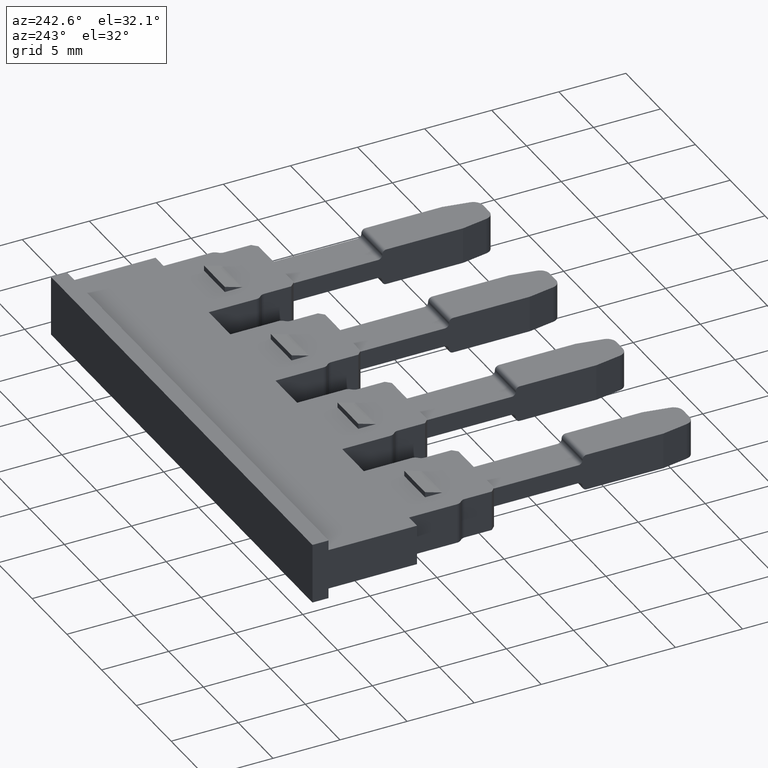
[diagram: clean part render]
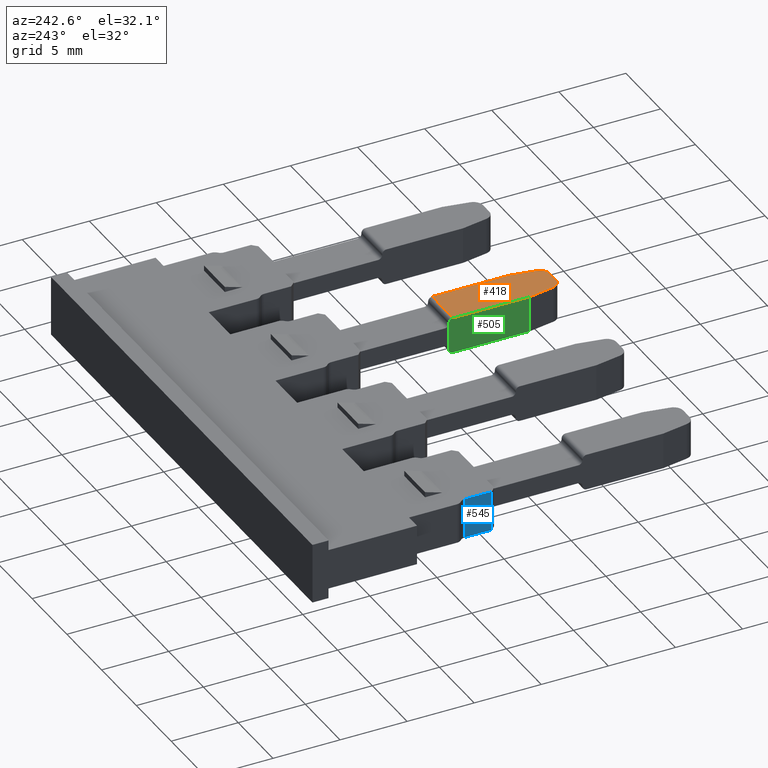
[diagram: same view with three faces highlighted in distinct colors, each labeled with its STEP entity id]
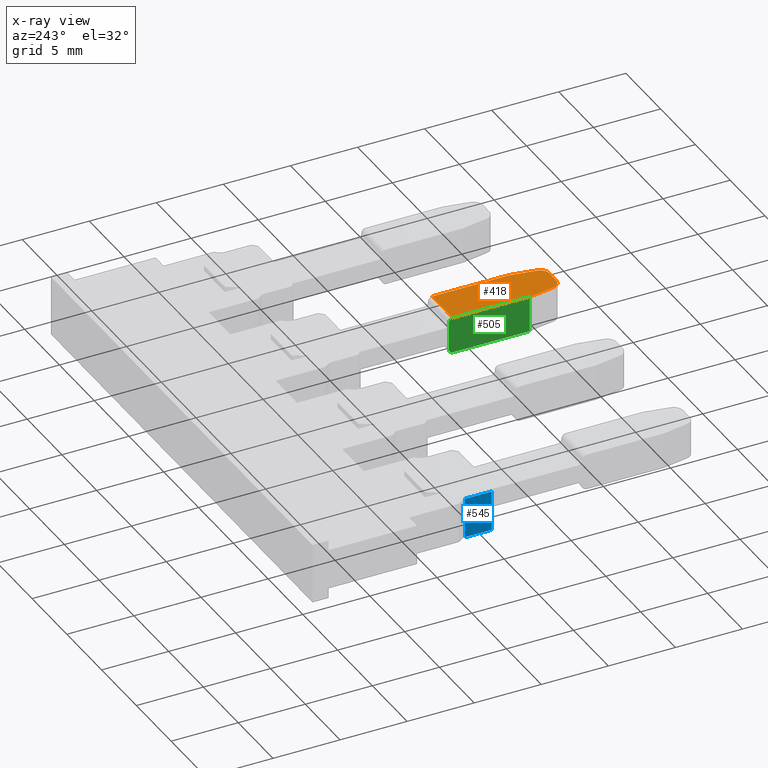
[diagram: x-ray of the same camera — body ghosted, the three highlighted faces saturated]
A machine part, auxiliary view with three faces highlighted in distinct colors.
The next image is the same camera in x-ray (body ghosted, the three faces saturated) — at least one of them is partly hidden behind the body in this view.
Their STEP definitions:

[orange] entity #418 — the highlighted planar face has unit normal (-0, 0, 1).
#233 = EDGE_CURVE ( 'NONE', #5245, #5262, #3550, .T. ) ;
#238 = EDGE_CURVE ( 'NONE', #5188, #5190, #3603, .T. ) ;
#250 = EDGE_CURVE ( 'NONE', #5188, #5262, #3646, .T. ) ;
#251 = EDGE_CURVE ( 'NONE', #5190, #5198, #3677, .T. ) ;
#252 = EDGE_CURVE ( 'NONE', #5198, #5228, #3658, .T. ) ;
#280 = EDGE_CURVE ( 'NONE', #5201, #5250, #3740, .T. ) ;
#297 = EDGE_CURVE ( 'NONE', #5245, #5250, #5401, .T. ) ;
#302 = EDGE_CURVE ( 'NONE', #5228, #5201, #3270, .T. ) ;
#418 = ADVANCED_FACE ( 'NONE', ( #4150 ), #4182, .T. ) ;
#1028 = ORIENTED_EDGE ( 'NONE', *, *, #297, .F. ) ;
#1030 = ORIENTED_EDGE ( 'NONE', *, *, #238, .T. ) ;
#1031 = ORIENTED_EDGE ( 'NONE', *, *, #233, .T. ) ;
#1041 = ORIENTED_EDGE ( 'NONE', *, *, #252, .T. ) ;
#1055 = ORIENTED_EDGE ( 'NONE', *, *, #302, .T. ) ;
#1060 = ORIENTED_EDGE ( 'NONE', *, *, #250, .F. ) ;
#1062 = ORIENTED_EDGE ( 'NONE', *, *, #251, .T. ) ;
#1084 = ORIENTED_EDGE ( 'NONE', *, *, #280, .T. ) ;
#2218 = CARTESIAN_POINT ( 'NONE',  ( 1145.094445258720500, 652.3527367076559400, 2.847804784789210100 ) ) ;
#2235 = CARTESIAN_POINT ( 'NONE',  ( 1142.433259543838400, 644.7067378249282700, 2.847804784774850400 ) ) ;
#2264 = CARTESIAN_POINT ( 'NONE',  ( 1142.094434011690700, 652.3527719075091200, 2.847804784774824700 ) ) ;
#2267 = CARTESIAN_POINT ( 'NONE',  ( 1142.094434011690700, 646.6283161340937800, 2.847804784774840700 ) ) ;
#2276 = CARTESIAN_POINT ( 'NONE',  ( 1143.122625005873500, 644.1282913512167200, 2.847804784774896200 ) ) ;
#2284 = CARTESIAN_POINT ( 'NONE',  ( 1144.066249097331400, 644.1282913512167200, 2.847804784774927700 ) ) ;
#2308 = CARTESIAN_POINT ( 'NONE',  ( 1144.755614559366700, 644.7067378249282700, 2.847804784774987200 ) ) ;
#2344 = CARTESIAN_POINT ( 'NONE',  ( 1145.094440091514300, 646.6283161340935500, 2.847804784775002800 ) ) ;
#3185 = VECTOR ( 'NONE', #3641, 1000.000000000000000 ) ;
#3190 = VECTOR ( 'NONE', #3602, 1000.000000000000100 ) ;
#3197 = VECTOR ( 'NONE', #3769, 1000.000000000000000 ) ;
#3203 = VECTOR ( 'NONE', #3594, 1000.000000000000100 ) ;
#3228 = VECTOR ( 'NONE', #3650, 1000.000000000000000 ) ;
#3237 = VECTOR ( 'NONE', #3640, 1000.000000000000100 ) ;
#3254 = AXIS2_PLACEMENT_3D ( 'NONE', #3846, #3827, #3844 ) ;
#3270 = CIRCLE ( 'NONE', #3254, 0.6999999999999229100 ) ;
#3422 = AXIS2_PLACEMENT_3D ( 'NONE', #4165, #4178, #4148 ) ;
#3550 = LINE ( 'NONE', #3600, #3190 ) ;
#3594 = DIRECTION ( 'NONE',  ( -0.9999999999311652800, 1.173325889926041300E-005, -5.363175877137947600E-014 ) ) ;
#3600 = CARTESIAN_POINT ( 'NONE',  ( 1144.755614559366700, 644.7067378249282700, 2.847804784774984100 ) ) ;
#3602 = DIRECTION ( 'NONE',  ( 0.1736478946976743900, 0.9848078029072806500, 9.334970462687131000E-015 ) ) ;
#3603 = LINE ( 'NONE', #3613, #3203 ) ;
#3613 = CARTESIAN_POINT ( 'NONE',  ( 1145.094440091514300, 652.3527367076559400, 2.847804784775002300 ) ) ;
#3640 = DIRECTION ( 'NONE',  ( 7.162729585980651700E-007, -0.9999999999997434300, -2.254383868701461200E-012 ) ) ;
#3641 = DIRECTION ( 'NONE',  ( -0.0000000000000000000, -1.000000000000000000, -0.0000000000000000000 ) ) ;
#3642 = CARTESIAN_POINT ( 'NONE',  ( 1142.094434011690700, 646.6283161340936700, 2.847804784774840700 ) ) ;
#3646 = LINE ( 'NONE', #3655, #3237 ) ;
#3650 = DIRECTION ( 'NONE',  ( 0.1736478946976646700, -0.9848078029072824300, -0.0000000000000000000 ) ) ;
#3655 = CARTESIAN_POINT ( 'NONE',  ( 1145.094445258716900, 652.3527416319764100, 2.847804784787907600 ) ) ;
#3658 = LINE ( 'NONE', #3642, #3228 ) ;
#3662 = CARTESIAN_POINT ( 'NONE',  ( 1142.094434011690700, 652.6527719075244200, 2.847804784774840700 ) ) ;
#3677 = LINE ( 'NONE', #3662, #3185 ) ;
#3740 = LINE ( 'NONE', #3766, #3197 ) ;
#3766 = CARTESIAN_POINT ( 'NONE',  ( 1135.207395039572200, 644.1282913512167200, 2.847804784774895700 ) ) ;
#3769 = DIRECTION ( 'NONE',  ( 1.000000000000000000, -1.720418656508634100E-014, -0.0000000000000000000 ) ) ;
#3791 = CARTESIAN_POINT ( 'NONE',  ( 1144.755614559366700, 644.7067378249282700, 2.847804784774987200 ) ) ;
#3806 = CARTESIAN_POINT ( 'NONE',  ( 1144.727327763530400, 644.5463151644213400, 2.847804784774983200 ) ) ;
#3811 = CARTESIAN_POINT ( 'NONE',  ( 1144.640987157445100, 644.3967687734993900, 2.847804784774977900 ) ) ;
#3812 = CARTESIAN_POINT ( 'NONE',  ( 1144.229146527706700, 644.1282913512168300, 2.847804784774955700 ) ) ;
#3814 = CARTESIAN_POINT ( 'NONE',  ( 1144.391413844856700, 644.1873518378539500, 2.847804784774964600 ) ) ;
#3816 = CARTESIAN_POINT ( 'NONE',  ( 1144.066249097331400, 644.1282913512167200, 2.847804784774927700 ) ) ;
#3827 = DIRECTION ( 'NONE',  ( -5.364441115151316900E-014, -2.347622273454535600E-024, 1.000000000000000000 ) ) ;
#3844 = DIRECTION ( 'NONE',  ( 1.000000000000000000, 0.0000000000000000000, 5.390033657499958300E-014 ) ) ;
#3846 = CARTESIAN_POINT ( 'NONE',  ( 1143.122625005873500, 644.8282913512166500, 2.847804784774896200 ) ) ;
#4148 = DIRECTION ( 'NONE',  ( 1.000000000000000000, 0.0000000000000000000, 5.364441115334514400E-014 ) ) ;
#4150 = FACE_OUTER_BOUND ( 'NONE', #5042, .T. ) ;
#4165 = CARTESIAN_POINT ( 'NONE',  ( 1146.094434382171400, 641.5303140484550100, 2.847804784775056100 ) ) ;
#4178 = DIRECTION ( 'NONE',  ( -5.364441115334514400E-014, 1.058364141383339600E-023, 1.000000000000000000 ) ) ;
#4182 = PLANE ( 'NONE',  #3422 ) ;
#5042 = EDGE_LOOP ( 'NONE', ( #1060, #1030, #1062, #1041, #1055, #1084, #1028, #1031 ) ) ;
#5188 = VERTEX_POINT ( 'NONE', #2218 ) ;
#5190 = VERTEX_POINT ( 'NONE', #2264 ) ;
#5198 = VERTEX_POINT ( 'NONE', #2267 ) ;
#5201 = VERTEX_POINT ( 'NONE', #2276 ) ;
#5228 = VERTEX_POINT ( 'NONE', #2235 ) ;
#5245 = VERTEX_POINT ( 'NONE', #2308 ) ;
#5250 = VERTEX_POINT ( 'NONE', #2284 ) ;
#5262 = VERTEX_POINT ( 'NONE', #2344 ) ;
#5401 = B_SPLINE_CURVE_WITH_KNOTS ( 'NONE', 3,
 ( #3791, #3806, #3811, #3814, #3812, #3816 ),
 .UNSPECIFIED., .F., .F.,
 ( 4, 2, 4 ),
 ( 0.0000000000000000000, 0.5000000000000000000, 1.000000000000000000 ),
 .UNSPECIFIED. ) ;

[blue] entity #545 — the highlighted planar face has unit normal (1, -0, 0).
#1 = EDGE_CURVE ( 'NONE', #5020, #5027, #1032, .T. ) ;
#111 = EDGE_CURVE ( 'NONE', #5118, #5058, #1407, .T. ) ;
#443 = EDGE_CURVE ( 'NONE', #5027, #5058, #4283, .T. ) ;
#449 = EDGE_CURVE ( 'NONE', #5118, #5020, #4321, .T. ) ;
#545 = ADVANCED_FACE ( 'NONE', ( #2631 ), #2634, .F. ) ;
#1032 = LINE ( 'NONE', #1065, #2952 ) ;
#1034 = DIRECTION ( 'NONE',  ( 1.269214834134032900E-006, 0.9999999999991945300, 0.0000000000000000000 ) ) ;
#1065 = CARTESIAN_POINT ( 'NONE',  ( 1121.494468933274400, 662.1536497164254300, -1.734723475976807100E-015 ) ) ;
#1407 = LINE ( 'NONE', #1431, #3056 ) ;
#1419 = DIRECTION ( 'NONE',  ( 0.0000000000000000000, 1.000000000000000000, 0.0000000000000000000 ) ) ;
#1431 = CARTESIAN_POINT ( 'NONE',  ( 1121.494466376607100, 662.1736497164254200, 3.000000000000000000 ) ) ;
#2045 = CARTESIAN_POINT ( 'NONE',  ( 1121.494466376607100, 660.1392804752734900, -1.734723475976807100E-015 ) ) ;
#2087 = CARTESIAN_POINT ( 'NONE',  ( 1121.494468933274000, 662.1536493991214900, 0.0000000000000000000 ) ) ;
#2130 = CARTESIAN_POINT ( 'NONE',  ( 1121.494467654940800, 662.1536497164254300, 3.000000000000000000 ) ) ;
#2187 = CARTESIAN_POINT ( 'NONE',  ( 1121.494466376607100, 660.1392804752734900, 3.000000000000000400 ) ) ;
#2618 = CARTESIAN_POINT ( 'NONE',  ( 1121.494468933274400, 662.1536497164254300, 3.000000000000000000 ) ) ;
#2619 = DIRECTION ( 'NONE',  ( 0.9999999999991945300, -1.269214834134032900E-006, 0.0000000000000000000 ) ) ;
#2631 = FACE_OUTER_BOUND ( 'NONE', #4899, .T. ) ;
#2634 = PLANE ( 'NONE',  #3526 ) ;
#2639 = DIRECTION ( 'NONE',  ( 1.269214834134032900E-006, 0.9999999999991945300, 0.0000000000000000000 ) ) ;
#2952 = VECTOR ( 'NONE', #1034, 1000.000000000000100 ) ;
#3056 = VECTOR ( 'NONE', #1419, 1000.000000000000000 ) ;
#3371 = VECTOR ( 'NONE', #4304, 1000.000000000000000 ) ;
#3403 = VECTOR ( 'NONE', #4263, 1000.000000000000000 ) ;
#3526 = AXIS2_PLACEMENT_3D ( 'NONE', #2618, #2619, #2639 ) ;
#4263 = DIRECTION ( 'NONE',  ( -0.0000000000000000000, 0.0000000000000000000, 1.000000000000000000 ) ) ;
#4283 = LINE ( 'NONE', #4287, #3403 ) ;
#4287 = CARTESIAN_POINT ( 'NONE',  ( 1121.494468933274400, 662.1536497164254300, 3.000000000000000000 ) ) ;
#4294 = CARTESIAN_POINT ( 'NONE',  ( 1121.494466376607100, 660.1392804752734900, 3.000000000000000000 ) ) ;
#4304 = DIRECTION ( 'NONE',  ( 0.0000000000000000000, -0.0000000000000000000, -1.000000000000000000 ) ) ;
#4321 = LINE ( 'NONE', #4294, #3371 ) ;
#4628 = ORIENTED_EDGE ( 'NONE', *, *, #449, .F. ) ;
#4638 = ORIENTED_EDGE ( 'NONE', *, *, #111, .T. ) ;
#4661 = ORIENTED_EDGE ( 'NONE', *, *, #1, .F. ) ;
#4664 = ORIENTED_EDGE ( 'NONE', *, *, #443, .F. ) ;
#4899 = EDGE_LOOP ( 'NONE', ( #4628, #4638, #4664, #4661 ) ) ;
#5020 = VERTEX_POINT ( 'NONE', #2045 ) ;
#5027 = VERTEX_POINT ( 'NONE', #2087 ) ;
#5058 = VERTEX_POINT ( 'NONE', #2130 ) ;
#5118 = VERTEX_POINT ( 'NONE', #2187 ) ;

[green] entity #505 — the highlighted planar face has unit normal (1, -0, 0).
#245 = EDGE_CURVE ( 'NONE', #5249, #5252, #3184, .T. ) ;
#251 = EDGE_CURVE ( 'NONE', #5190, #5198, #3677, .T. ) ;
#254 = EDGE_CURVE ( 'NONE', #5150, #5152, #3643, .T. ) ;
#269 = EDGE_CURVE ( 'NONE', #5300, #5190, #3234, .T. ) ;
#290 = EDGE_CURVE ( 'NONE', #5150, #5300, #3788, .T. ) ;
#307 = EDGE_CURVE ( 'NONE', #5198, #5214, #3842, .T. ) ;
#329 = EDGE_CURVE ( 'NONE', #5214, #5249, #3880, .T. ) ;
#403 = EDGE_CURVE ( 'NONE', #5252, #5152, #4134, .T. ) ;
#505 = ADVANCED_FACE ( 'NONE', ( #2422 ), #2455, .F. ) ;
#2181 = CARTESIAN_POINT ( 'NONE',  ( 1142.094436423388300, 652.6527719074961200, 2.499999999999889400 ) ) ;
#2190 = CARTESIAN_POINT ( 'NONE',  ( 1142.094436423388300, 652.6527719074961200, 0.5000061035155150000 ) ) ;
#2240 = CARTESIAN_POINT ( 'NONE',  ( 1142.094434011691000, 646.6283161340937800, 0.1522013187405634200 ) ) ;
#2264 = CARTESIAN_POINT ( 'NONE',  ( 1142.094434011690700, 652.3527719075091200, 2.847804784774824700 ) ) ;
#2267 = CARTESIAN_POINT ( 'NONE',  ( 1142.094434011690700, 646.6283161340937800, 2.847804784774840700 ) ) ;
#2328 = CARTESIAN_POINT ( 'NONE',  ( 1142.094434011690700, 652.6527719075245400, 2.547804784774923400 ) ) ;
#2334 = CARTESIAN_POINT ( 'NONE',  ( 1142.094434011691000, 652.3527719075040100, 0.1522013187405798500 ) ) ;
#2336 = CARTESIAN_POINT ( 'NONE',  ( 1142.094434011691000, 652.6527719075244200, 0.4522013187405652400 ) ) ;
#2415 = CARTESIAN_POINT ( 'NONE',  ( 1142.094434011691400, 652.6527719075244200, -8.894767489098113000 ) ) ;
#2422 = FACE_OUTER_BOUND ( 'NONE', #4802, .T. ) ;
#2423 = DIRECTION ( 'NONE',  ( 1.000000000000000000, -0.0000000000000000000, 5.364441115151316900E-014 ) ) ;
#2447 = DIRECTION ( 'NONE',  ( 5.364441115151316900E-014, 0.0000000000000000000, -1.000000000000000000 ) ) ;
#2455 = PLANE ( 'NONE',  #3428 ) ;
#3184 = CIRCLE ( 'NONE', #3209, 0.2999999999999672900 ) ;
#3185 = VECTOR ( 'NONE', #3641, 1000.000000000000000 ) ;
#3198 = VECTOR ( 'NONE', #3661, 1000.000000000000000 ) ;
#3209 = AXIS2_PLACEMENT_3D ( 'NONE', #3676, #3660, #3656 ) ;
#3224 = AXIS2_PLACEMENT_3D ( 'NONE', #3683, #3708, #3706 ) ;
#3234 = CIRCLE ( 'NONE', #3224, 0.2999999999999674000 ) ;
#3276 = VECTOR ( 'NONE', #3881, 1000.000000000000000 ) ;
#3289 = VECTOR ( 'NONE', #3865, 1000.000000000000000 ) ;
#3297 = VECTOR ( 'NONE', #3795, 1000.000000000000000 ) ;
#3316 = VECTOR ( 'NONE', #4139, 1000.000000000000000 ) ;
#3428 = AXIS2_PLACEMENT_3D ( 'NONE', #2415, #2423, #2447 ) ;
#3637 = CARTESIAN_POINT ( 'NONE',  ( 1142.094438835085800, 652.6527719075245400, 1.499999999999889900 ) ) ;
#3641 = DIRECTION ( 'NONE',  ( -0.0000000000000000000, -1.000000000000000000, -0.0000000000000000000 ) ) ;
#3643 = LINE ( 'NONE', #3637, #3198 ) ;
#3656 = DIRECTION ( 'NONE',  ( 0.0000000000000000000, 0.0000000000000000000, -1.000000000000000000 ) ) ;
#3660 = DIRECTION ( 'NONE',  ( 1.000000000000000000, -0.0000000000000000000, 5.364441115151316900E-014 ) ) ;
#3661 = DIRECTION ( 'NONE',  ( 5.364441115334479700E-014, 4.375085644430830600E-021, -1.000000000000000000 ) ) ;
#3662 = CARTESIAN_POINT ( 'NONE',  ( 1142.094434011690700, 652.6527719075244200, 2.847804784774840700 ) ) ;
#3676 = CARTESIAN_POINT ( 'NONE',  ( 1142.094434011691000, 652.3527719075038900, 0.4522013187405638000 ) ) ;
#3677 = LINE ( 'NONE', #3662, #3185 ) ;
#3683 = CARTESIAN_POINT ( 'NONE',  ( 1142.094434011690700, 652.3527719075038900, 2.547804784774841300 ) ) ;
#3706 = DIRECTION ( 'NONE',  ( 0.0000000000000000000, 0.0000000000000000000, -1.000000000000000000 ) ) ;
#3708 = DIRECTION ( 'NONE',  ( 1.000000000000000000, -0.0000000000000000000, 5.364441115151316900E-014 ) ) ;
#3788 = LINE ( 'NONE', #3820, #3297 ) ;
#3795 = DIRECTION ( 'NONE',  ( -5.364441115151316900E-014, -0.0000000000000000000, 1.000000000000000000 ) ) ;
#3820 = CARTESIAN_POINT ( 'NONE',  ( 1142.094434011691400, 652.6527719075245400, -8.894767489098113000 ) ) ;
#3841 = CARTESIAN_POINT ( 'NONE',  ( 1142.094434011691400, 646.6283161340937800, -8.894767489098113000 ) ) ;
#3842 = LINE ( 'NONE', #3841, #3289 ) ;
#3865 = DIRECTION ( 'NONE',  ( 5.364441115151316900E-014, 0.0000000000000000000, -1.000000000000000000 ) ) ;
#3874 = CARTESIAN_POINT ( 'NONE',  ( 1142.094434011691000, 652.6527719075244200, 0.1522013187405632500 ) ) ;
#3880 = LINE ( 'NONE', #3874, #3276 ) ;
#3881 = DIRECTION ( 'NONE',  ( 0.0000000000000000000, 1.000000000000000000, 0.0000000000000000000 ) ) ;
#4104 = CARTESIAN_POINT ( 'NONE',  ( 1142.094434011691400, 652.6527719075244200, -8.894767489098113000 ) ) ;
#4134 = LINE ( 'NONE', #4104, #3316 ) ;
#4139 = DIRECTION ( 'NONE',  ( -5.364441115151316900E-014, -0.0000000000000000000, 1.000000000000000000 ) ) ;
#4802 = EDGE_LOOP ( 'NONE', ( #5344, #5333, #5376, #5331, #5343, #5353, #5380, #5374 ) ) ;
#5150 = VERTEX_POINT ( 'NONE', #2181 ) ;
#5152 = VERTEX_POINT ( 'NONE', #2190 ) ;
#5190 = VERTEX_POINT ( 'NONE', #2264 ) ;
#5198 = VERTEX_POINT ( 'NONE', #2267 ) ;
#5214 = VERTEX_POINT ( 'NONE', #2240 ) ;
#5249 = VERTEX_POINT ( 'NONE', #2334 ) ;
#5252 = VERTEX_POINT ( 'NONE', #2336 ) ;
#5300 = VERTEX_POINT ( 'NONE', #2328 ) ;
#5331 = ORIENTED_EDGE ( 'NONE', *, *, #251, .F. ) ;
#5333 = ORIENTED_EDGE ( 'NONE', *, *, #329, .F. ) ;
#5343 = ORIENTED_EDGE ( 'NONE', *, *, #269, .F. ) ;
#5344 = ORIENTED_EDGE ( 'NONE', *, *, #245, .F. ) ;
#5353 = ORIENTED_EDGE ( 'NONE', *, *, #290, .F. ) ;
#5374 = ORIENTED_EDGE ( 'NONE', *, *, #403, .F. ) ;
#5376 = ORIENTED_EDGE ( 'NONE', *, *, #307, .F. ) ;
#5380 = ORIENTED_EDGE ( 'NONE', *, *, #254, .T. ) ;